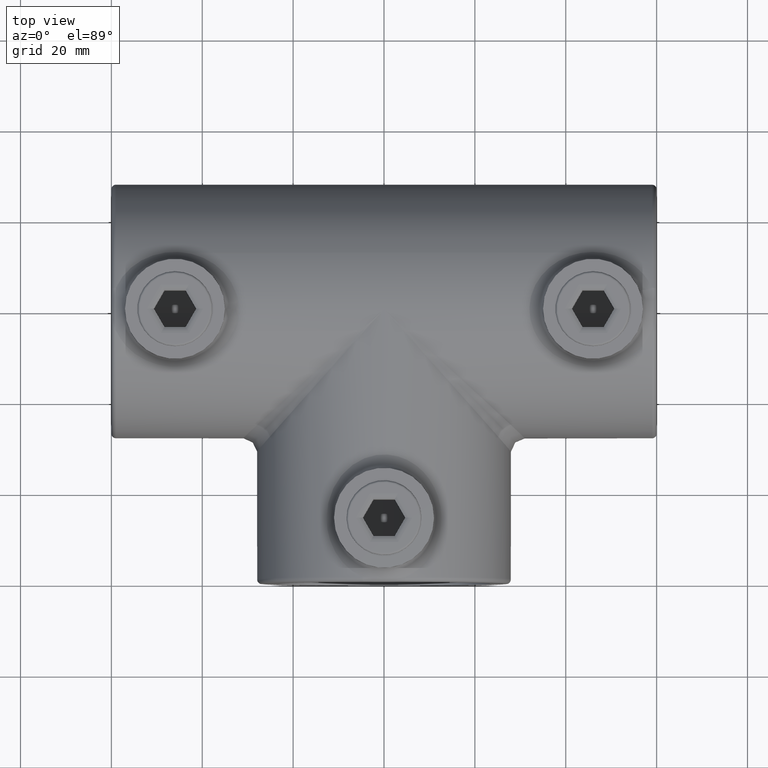
[diagram: clean part render]
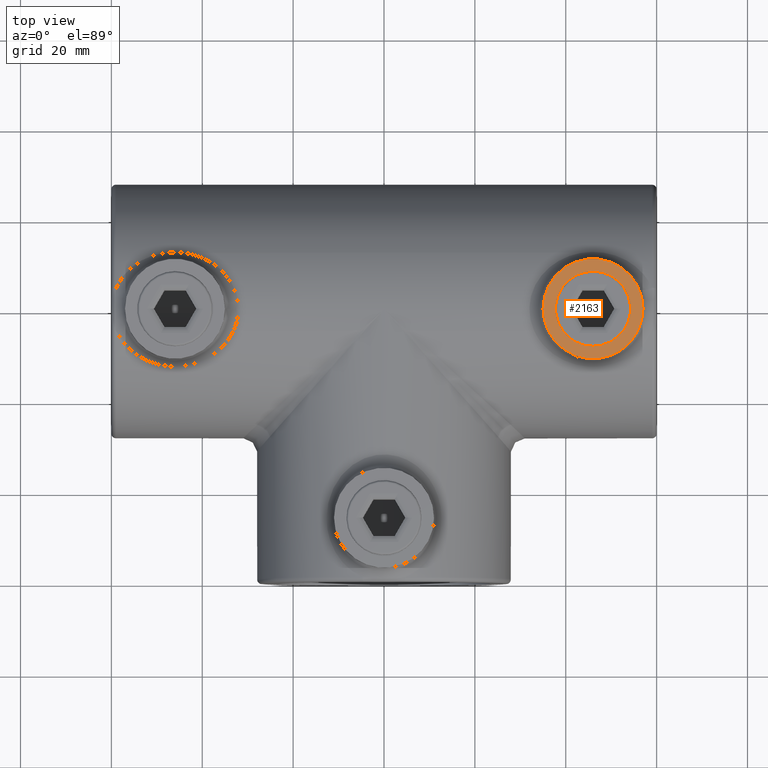
[diagram: same view with one face highlighted and labeled with its STEP entity id]
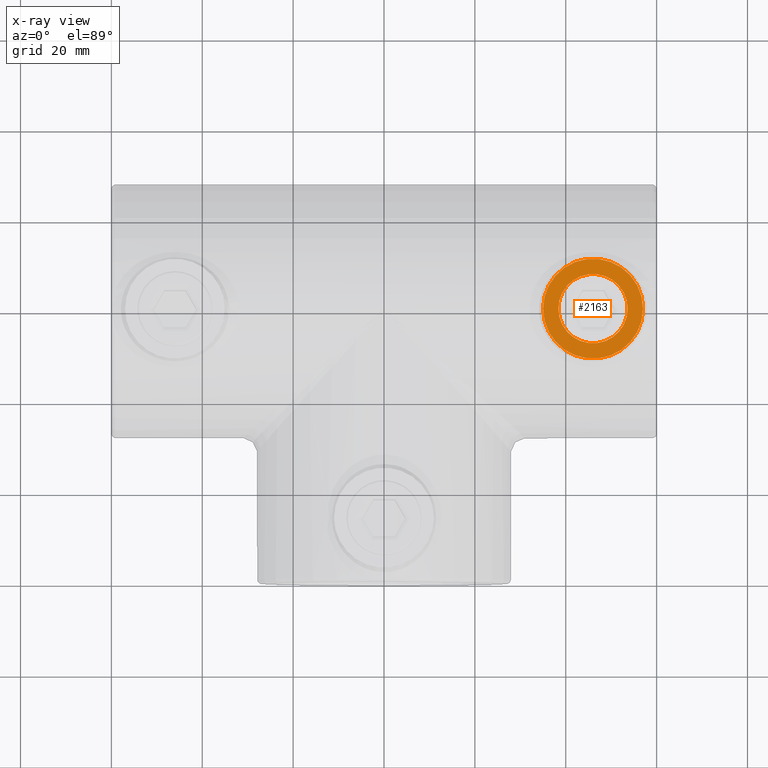
[diagram: x-ray of the same camera — body ghosted, the highlighted face saturated]
A machine part, top view. The second image highlights one B-rep face of the part: STEP entity #2163.
The next image is the same camera in x-ray: the body ghosted, the highlighted face saturated — about 0% of this face is hidden behind the body in this view.
In plain terms, the highlighted planar face has unit normal (0, 0, 1).
Its self-contained STEP definition (entity closure, byte-faithful):
#16 = VERTEX_POINT ( 'NONE', #4492 ) ;
#225 = EDGE_CURVE ( 'NONE', #3942, #3942, #4204, .T. ) ;
#353 = EDGE_CURVE ( 'NONE', #16, #16, #3057, .T. ) ;
#453 = CARTESIAN_POINT ( 'NONE',  ( 46.00000000000000000, 60.00000000000000000, 32.50000000000000000 ) ) ;
#575 = PLANE ( 'NONE',  #1342 ) ;
#813 = DIRECTION ( 'NONE',  ( -0.000000000000000000, 0.000000000000000000, 1.000000000000000000 ) ) ;
#1044 = DIRECTION ( 'NONE',  ( 1.000000000000000000, 0.000000000000000000, 0.000000000000000000 ) ) ;
#1342 = AXIS2_PLACEMENT_3D ( 'NONE', #4034, #4371, #2056 ) ;
#1494 = AXIS2_PLACEMENT_3D ( 'NONE', #4486, #1817, #1044 ) ;
#1743 = ORIENTED_EDGE ( 'NONE', *, *, #225, .F. ) ;
#1817 = DIRECTION ( 'NONE',  ( -0.000000000000000000, -0.000000000000000000, 1.000000000000000000 ) ) ;
#2056 = DIRECTION ( 'NONE',  ( 1.000000000000000000, 0.000000000000000000, 0.000000000000000000 ) ) ;
#2163 = ADVANCED_FACE ( 'NONE', ( #4724, #4377 ), #575, .T. ) ;
#2526 = AXIS2_PLACEMENT_3D ( 'NONE', #453, #813, #3931 ) ;
#2631 = EDGE_LOOP ( 'NONE', ( #4112 ) ) ;
#3057 = CIRCLE ( 'NONE', #2526, 10.99999999999998934 ) ;
#3230 = EDGE_LOOP ( 'NONE', ( #1743 ) ) ;
#3931 = DIRECTION ( 'NONE',  ( 1.000000000000000000, 0.000000000000000000, 0.000000000000000000 ) ) ;
#3942 = VERTEX_POINT ( 'NONE', #4905 ) ;
#4034 = CARTESIAN_POINT ( 'NONE',  ( 0.000000000000000000, 0.000000000000000000, 32.50000000000000000 ) ) ;
#4112 = ORIENTED_EDGE ( 'NONE', *, *, #353, .T. ) ;
#4204 = CIRCLE ( 'NONE', #1494, 7.624999999999985789 ) ;
#4371 = DIRECTION ( 'NONE',  ( -0.000000000000000000, 0.000000000000000000, 1.000000000000000000 ) ) ;
#4377 = FACE_OUTER_BOUND ( 'NONE', #2631, .T. ) ;
#4486 = CARTESIAN_POINT ( 'NONE',  ( 46.00000000000000000, 60.00000000000000000, 32.50000000000000000 ) ) ;
#4492 = CARTESIAN_POINT ( 'NONE',  ( 56.99999999999998579, 60.00000000000000000, 32.50000000000000000 ) ) ;
#4724 = FACE_BOUND ( 'NONE', #3230, .T. ) ;
#4905 = CARTESIAN_POINT ( 'NONE',  ( 53.62499999999998579, 60.00000000000000000, 32.50000000000000000 ) ) ;